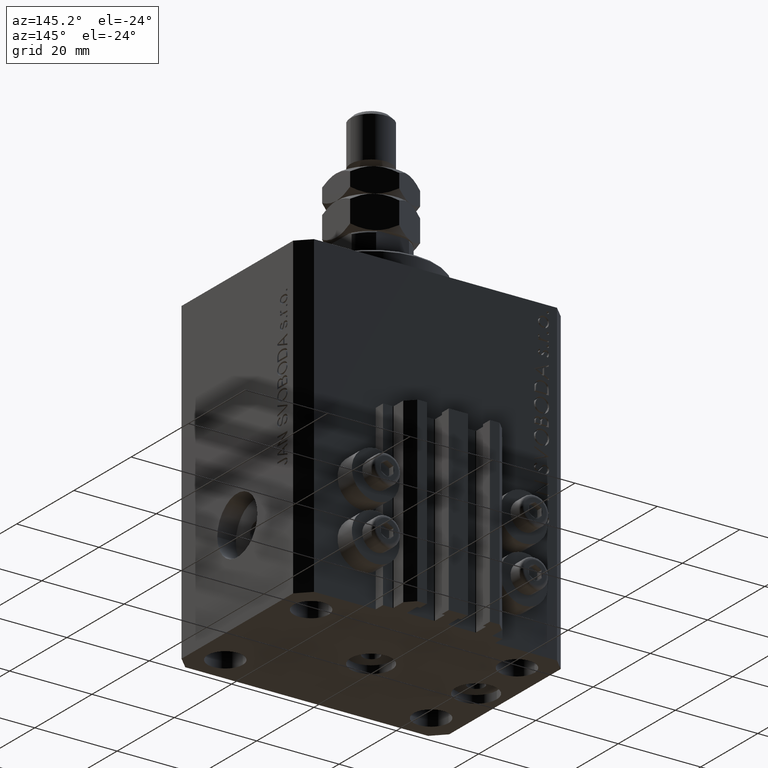
[diagram: clean part render]
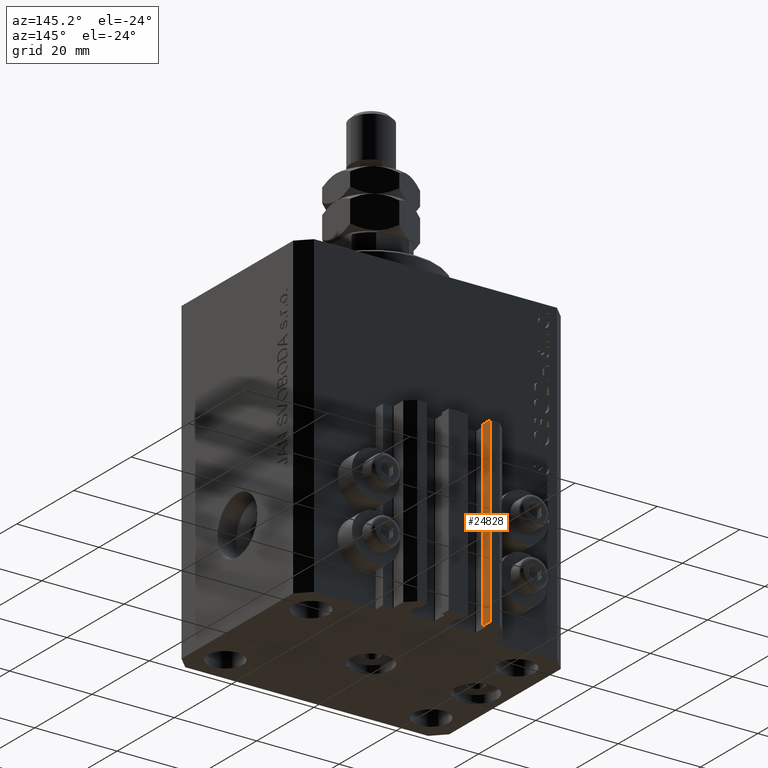
[diagram: same view with one face highlighted and labeled with its STEP entity id]
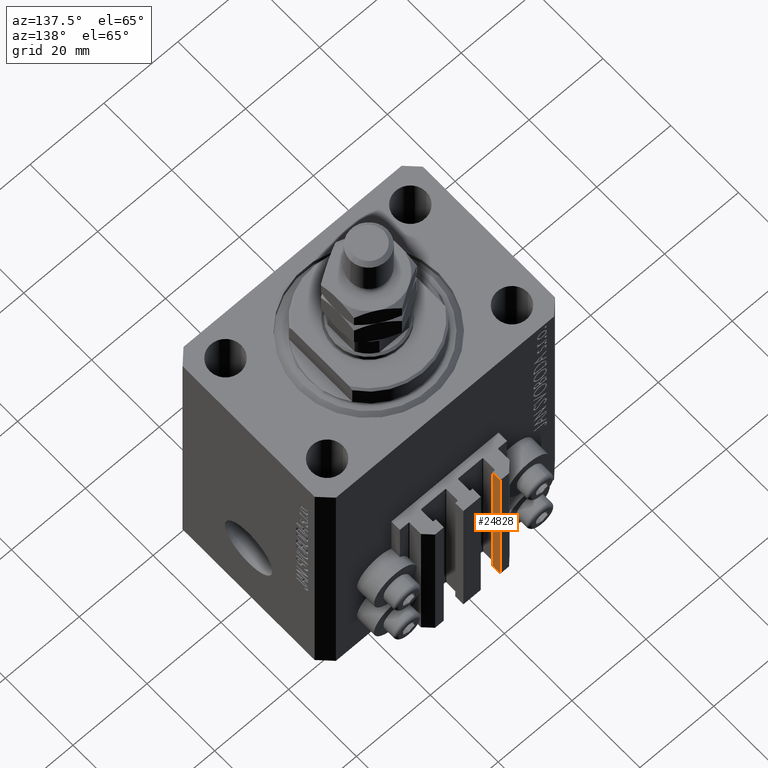
[diagram: same view with one face highlighted and labeled with its STEP entity id]
A machine part, auxiliary view. The second image highlights one B-rep face of the part: STEP entity #24828.
A second angle (auxiliary view) of the same face is appended — the face is thin or edge-on in the first view.
In plain terms, the highlighted planar face has unit normal (1, 0, 0).
Its self-contained STEP definition (entity closure, byte-faithful):
#688 = EDGE_CURVE ( 'NONE', #2537, #12412, #24575, .T. ) ;
#857 = PLANE ( 'NONE',  #48383 ) ;
#1005 = DIRECTION ( 'NONE',  ( 0.000000000000000000, 1.000000000000000000, 0.000000000000000000 ) ) ;
#1137 = LINE ( 'NONE', #1622, #31362 ) ;
#1622 = CARTESIAN_POINT ( 'NONE',  ( -7.650000000000000355, 30.49999999999948486, -77.00000000000000000 ) ) ;
#1741 = LINE ( 'NONE', #4969, #25898 ) ;
#2505 = CARTESIAN_POINT ( 'NONE',  ( -7.650000000000000355, 28.09999999999948628, -33.00000000000000000 ) ) ;
#2537 = VERTEX_POINT ( 'NONE', #18644 ) ;
#3460 = ORIENTED_EDGE ( 'NONE', *, *, #34710, .T. ) ;
#4969 = CARTESIAN_POINT ( 'NONE',  ( -7.650000000000000355, 28.09999999999948628, -77.00000000000000000 ) ) ;
#7615 = CARTESIAN_POINT ( 'NONE',  ( -7.650000000000000355, 30.49999999999948486, -33.00000000000000000 ) ) ;
#8839 = EDGE_CURVE ( 'NONE', #24242, #12412, #1137, .T. ) ;
#9441 = CARTESIAN_POINT ( 'NONE',  ( -7.650000000000000355, 28.09999999999948628, -77.00000000000000000 ) ) ;
#12412 = VERTEX_POINT ( 'NONE', #7615 ) ;
#13167 = LINE ( 'NONE', #9441, #30727 ) ;
#15965 = EDGE_LOOP ( 'NONE', ( #34375, #42851, #3460, #32683 ) ) ;
#16458 = FACE_OUTER_BOUND ( 'NONE', #15965, .T. ) ;
#16736 = DIRECTION ( 'NONE',  ( 0.000000000000000000, 0.000000000000000000, 1.000000000000000000 ) ) ;
#17620 = DIRECTION ( 'NONE',  ( 0.000000000000000000, 1.000000000000000000, 0.000000000000000000 ) ) ;
#18644 = CARTESIAN_POINT ( 'NONE',  ( -7.650000000000000355, 28.09999999999948628, -33.00000000000000000 ) ) ;
#19615 = DIRECTION ( 'NONE',  ( 0.000000000000000000, 0.000000000000000000, 1.000000000000000000 ) ) ;
#22907 = DIRECTION ( 'NONE',  ( 0.000000000000000000, 0.000000000000000000, -1.000000000000000000 ) ) ;
#24242 = VERTEX_POINT ( 'NONE', #42843 ) ;
#24575 = LINE ( 'NONE', #2505, #43814 ) ;
#24828 = ADVANCED_FACE ( 'NONE', ( #16458 ), #857, .T. ) ;
#25898 = VECTOR ( 'NONE', #1005, 1000.000000000000000 ) ;
#30727 = VECTOR ( 'NONE', #19615, 1000.000000000000000 ) ;
#31019 = VERTEX_POINT ( 'NONE', #35559 ) ;
#31362 = VECTOR ( 'NONE', #16736, 1000.000000000000000 ) ;
#32683 = ORIENTED_EDGE ( 'NONE', *, *, #8839, .T. ) ;
#34375 = ORIENTED_EDGE ( 'NONE', *, *, #688, .F. ) ;
#34710 = EDGE_CURVE ( 'NONE', #31019, #24242, #1741, .T. ) ;
#35559 = CARTESIAN_POINT ( 'NONE',  ( -7.650000000000000355, 28.09999999999948628, -77.00000000000000000 ) ) ;
#36494 = EDGE_CURVE ( 'NONE', #31019, #2537, #13167, .T. ) ;
#42484 = CARTESIAN_POINT ( 'NONE',  ( -7.650000000000000355, 28.09999999999948628, -77.00000000000000000 ) ) ;
#42843 = CARTESIAN_POINT ( 'NONE',  ( -7.650000000000000355, 30.49999999999948486, -77.00000000000000000 ) ) ;
#42851 = ORIENTED_EDGE ( 'NONE', *, *, #36494, .F. ) ;
#43814 = VECTOR ( 'NONE', #17620, 1000.000000000000000 ) ;
#46695 = DIRECTION ( 'NONE',  ( 1.000000000000000000, 0.000000000000000000, 0.000000000000000000 ) ) ;
#48383 = AXIS2_PLACEMENT_3D ( 'NONE', #42484, #46695, #22907 ) ;